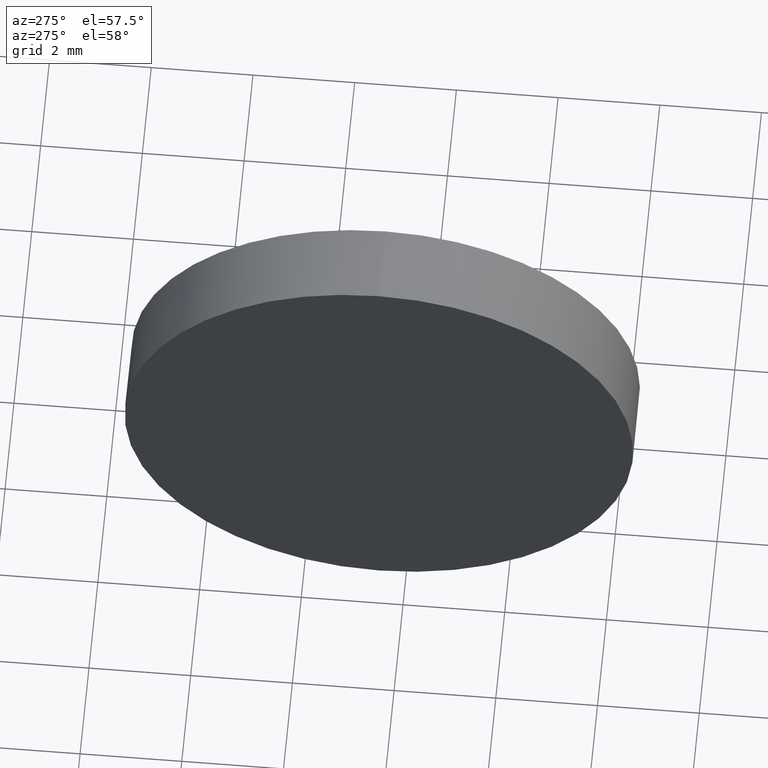
[diagram: clean part render]
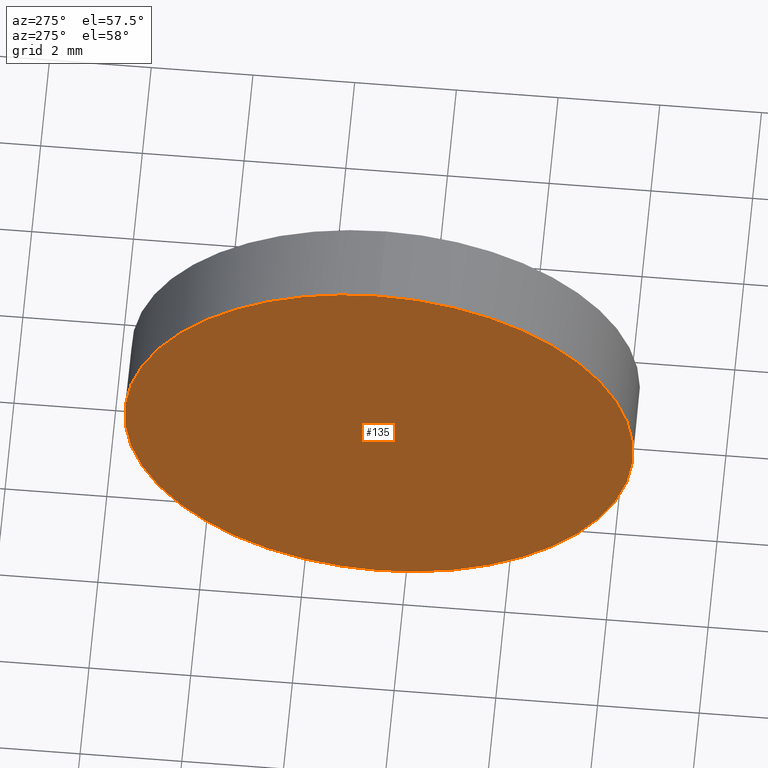
[diagram: same view with one face highlighted and labeled with its STEP entity id]
A machine part, auxiliary view. The second image highlights one B-rep face of the part: STEP entity #135.
In plain terms, the highlighted planar face has unit normal (1, 0, 0).
Its self-contained STEP definition (entity closure, byte-faithful):
#9 = CARTESIAN_POINT ( 'NONE',  ( 446.6160620290427800, 82.52816574681480700, 5.000000000000004400 ) ) ;
#18 = DIRECTION ( 'NONE',  ( 1.000000000000000000, 0.0000000000000000000, 0.0000000000000000000 ) ) ;
#50 = EDGE_CURVE ( 'NONE', #63, #176, #181, .T. ) ;
#54 = EDGE_CURVE ( 'NONE', #176, #63, #73, .T. ) ;
#63 = VERTEX_POINT ( 'NONE', #142 ) ;
#72 = DIRECTION ( 'NONE',  ( 0.0000000000000000000, 0.0000000000000000000, 1.000000000000000000 ) ) ;
#73 = CIRCLE ( 'NONE', #134, 5.000000000000004400 ) ;
#79 = CARTESIAN_POINT ( 'NONE',  ( 446.6160620290427800, 82.52816574681480700, 0.0000000000000000000 ) ) ;
#86 = AXIS2_PLACEMENT_3D ( 'NONE', #106, #160, #72 ) ;
#95 = PLANE ( 'NONE',  #175 ) ;
#106 = CARTESIAN_POINT ( 'NONE',  ( 446.6160620290427800, 82.52816574681480700, 0.0000000000000000000 ) ) ;
#107 = ORIENTED_EDGE ( 'NONE', *, *, #50, .T. ) ;
#134 = AXIS2_PLACEMENT_3D ( 'NONE', #79, #165, #162 ) ;
#135 = ADVANCED_FACE ( 'NONE', ( #136 ), #95, .F. ) ;
#136 = FACE_OUTER_BOUND ( 'NONE', #173, .T. ) ;
#142 = CARTESIAN_POINT ( 'NONE',  ( 446.6160620290427800, 82.52816574681480700, -5.000000000000004400 ) ) ;
#155 = CARTESIAN_POINT ( 'NONE',  ( 446.6160620290427800, 82.52816574681480700, 0.0000000000000000000 ) ) ;
#160 = DIRECTION ( 'NONE',  ( -1.000000000000000000, -0.0000000000000000000, -0.0000000000000000000 ) ) ;
#162 = DIRECTION ( 'NONE',  ( 0.0000000000000000000, 0.0000000000000000000, 1.000000000000000000 ) ) ;
#165 = DIRECTION ( 'NONE',  ( -1.000000000000000000, -0.0000000000000000000, -0.0000000000000000000 ) ) ;
#173 = EDGE_LOOP ( 'NONE', ( #184, #107 ) ) ;
#175 = AXIS2_PLACEMENT_3D ( 'NONE', #155, #18, #182 ) ;
#176 = VERTEX_POINT ( 'NONE', #9 ) ;
#181 = CIRCLE ( 'NONE', #86, 5.000000000000004400 ) ;
#182 = DIRECTION ( 'NONE',  ( 0.0000000000000000000, 0.0000000000000000000, -1.000000000000000000 ) ) ;
#184 = ORIENTED_EDGE ( 'NONE', *, *, #54, .T. ) ;